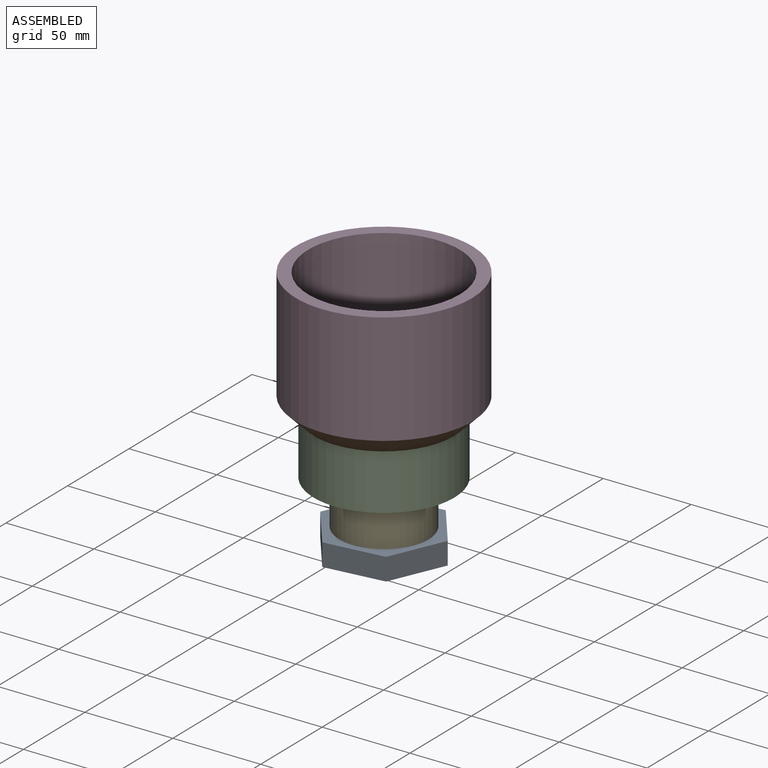
[diagram: assembled view]
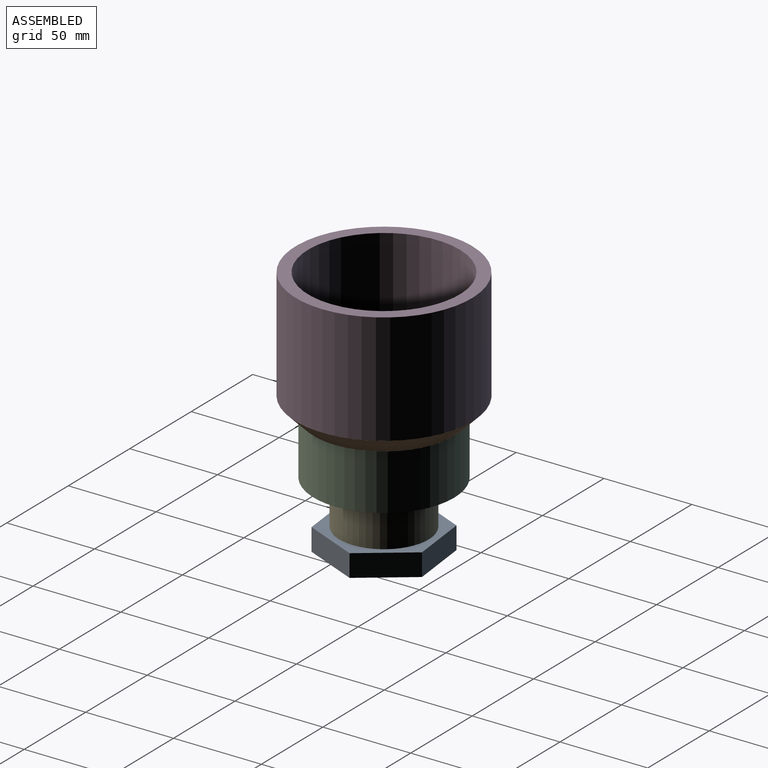
[diagram: assembled view, second angle]
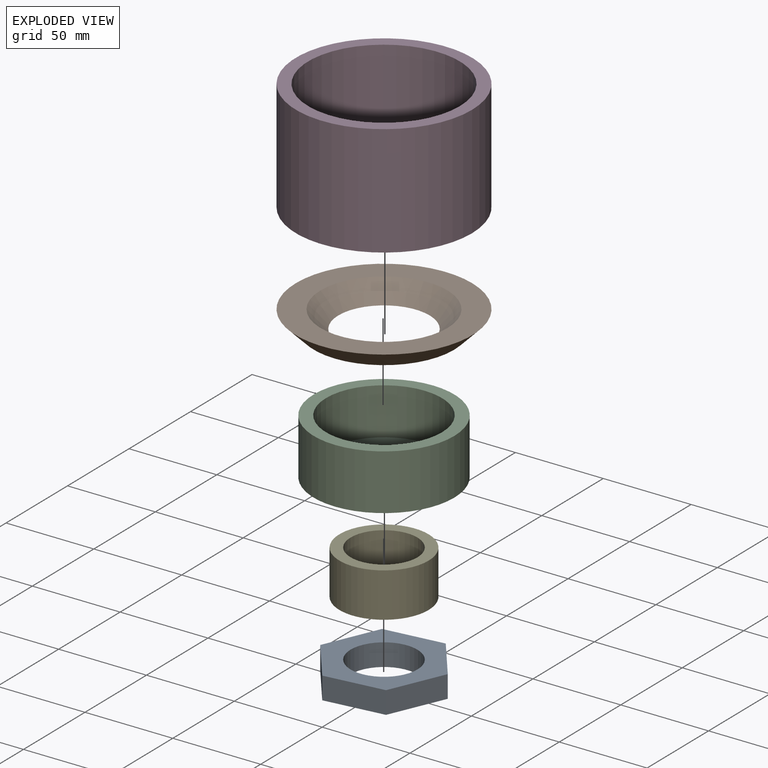
[diagram: exploded view]
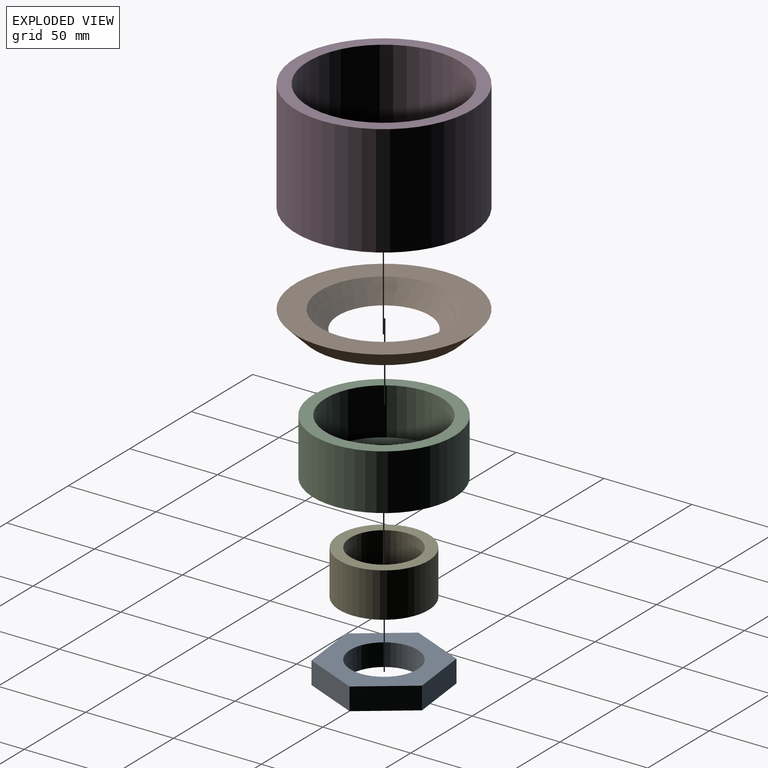
[diagram: exploded view, second angle]
ASSEMBLY  parts=5 mates=5
PART A: 9 faces, bbox 67.2x62.1x12.7 mm
  f0: plane 31.03x13.43mm, normal (0.92,-0.4,0), area 429.4mm2, adj f1,f5,f6,f7
  f1: plane 33.59x12.7mm, normal (0.11,-0.99,0), area 429.4mm2, adj f0,f2,f6,f7
  f2: plane 27.14x20.16mm, normal (-0.8,-0.6,0), area 429.4mm2, adj f1,f3,f6,f7
  f3: plane 31.03x13.43mm, normal (-0.92,0.4,0), area 429.4mm2, adj f2,f4,f6,f7
  f4: plane 33.59x12.7mm, normal (-0.11,0.99,0), area 429.4mm2, adj f3,f5,f6,f7
  f5: plane 27.14x20.16mm, normal (0.8,0.6,0), area 429.4mm2, adj f0,f4,f6,f7
  f6: plane 67.18x62.06mm, normal (0,0,-1), area 1830.1mm2, adj f0,f1,f2,f3,f4,f5,f8
  f7: plane 67.18x62.06mm, normal (0,0,1), area 1830.1mm2, adj f0,f1,f2,f3,f4,f5,f8
  f8: cylinder r=19.05mm len=38.1mm, axis (0,0,1), area 1520.1mm2, adj f6,f7
PART B: 4 faces, bbox 100.3x100.3x10.2 mm
  f0: plane 80x80mm, normal (0,0,-1), area 2902.8mm2, adj f1,f3
  f1: cone r=26mm half-angle=45deg, axis (0,0,1), area 2805.9mm2, adj f0,f2
  f2: plane 100.32x100.32mm, normal (0,0,1), area 3796.6mm2, adj f1,f3
  f3: cone r=40mm half-angle=45deg, axis (0,0,1), area 4069.8mm2, adj f0,f2
PART C: 6 faces, bbox 80x80x31.8 mm
  f0: cylinder r=40mm len=80mm, axis (0,0,-1), area 7979.6mm2, adj f1,f2
  f1: plane 80x80mm, normal (0,0,1), area 1605.4mm2, adj f0,f3
  f2: plane 80x80mm, normal (0,0,-1), area 2999.7mm2, adj f0,f5
  f3: cylinder r=33mm len=66mm, axis (0,0,1), area 5546.5mm2, adj f1,f4
  f4: plane 66x66mm, normal (0,0,1), area 1394.4mm2, adj f3,f5
  f5: cylinder r=25.4mm len=50.8mm, axis (0,0,-1), area 798mm2, adj f2,f4
PART D: 4 faces, bbox 100.3x100.3x63.5 mm
  f0: cylinder r=50.16mm len=100.32mm, axis (0,0,-1), area 20013mm2, adj f1,f2
  f1: plane 100.32x100.32mm, normal (0,0,1), area 2052.2mm2, adj f0,f3
  f2: plane 100.32x100.32mm, normal (0,0,-1), area 2052.2mm2, adj f0,f3
  f3: cylinder r=43.16mm len=86.32mm, axis (0,0,1), area 17220.1mm2, adj f1,f2
PART E: 4 faces, bbox 50.8x50.8x25.4 mm
  f0: cylinder r=25.4mm len=50.8mm, axis (0,0,1), area 4053.7mm2, adj f1,f2
  f1: plane 50.8x50.8mm, normal (0,0,-1), area 886.7mm2, adj f0,f3
  f2: plane 50.8x50.8mm, normal (0,0,1), area 886.7mm2, adj f0,f3
  f3: cylinder r=19.05mm len=38.1mm, axis (0,0,1), area 3040.2mm2, adj f1,f2
PLACE A t=(0.24,0,-4.76)mm
PLACE B t=(13.49,0,26.99)mm
PLACE C t=(0.24,0,-4.76)mm
PLACE D t=(0.24,0,37.15)mm
PLACE E t=(0.24,0,-4.76)mm
MATE slider C.f0 <-> B.f1  axis (0,0,1) through (0.24,0,26.99)mm
MATE slider C.f0 <-> E.f0  axis (0,0,-1) through (0.24,0,-4.76)mm
MATE slider D.f0 <-> B.f1  axis (0,0,-1) through (0.24,0,37.15)mm
MATE slider A.f8 <-> E.f0  axis (0,0,1) through (0.24,0,-30.16)mm
MATE slider E.f0 <-> C.f0  axis (0,0,1) through (0.24,0,-4.76)mm
